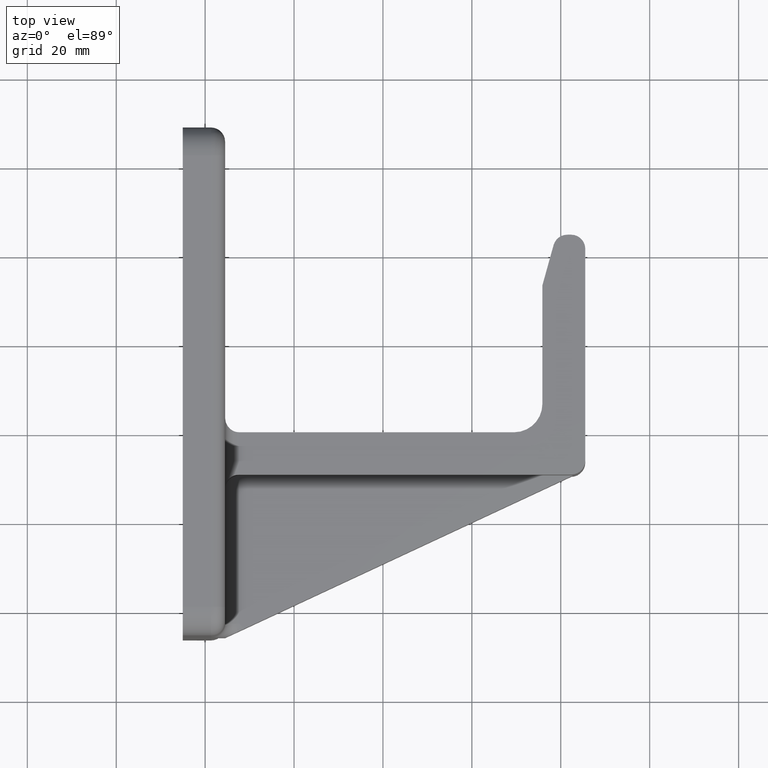
[diagram: clean part render]
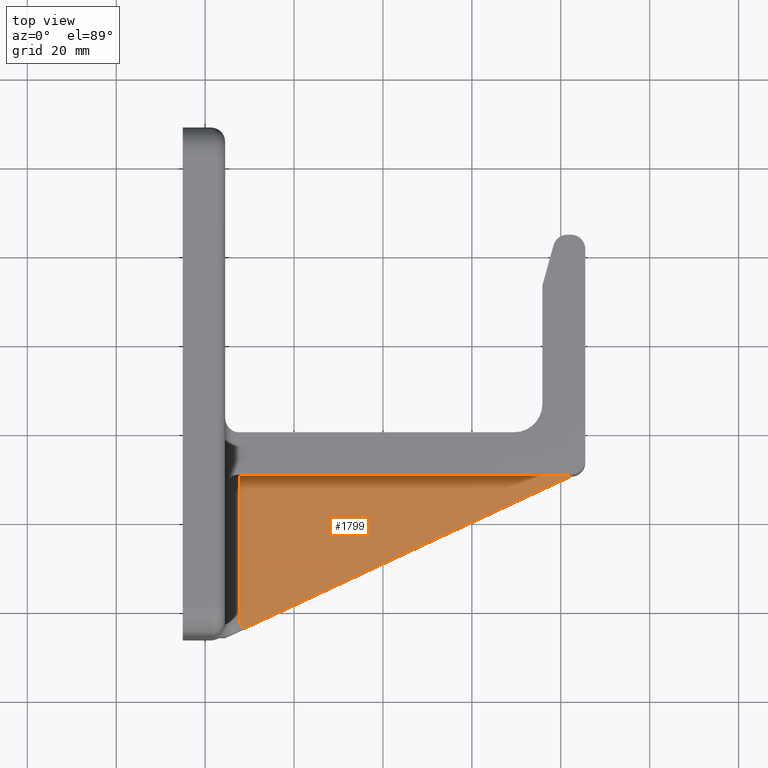
[diagram: same view with one face highlighted and labeled with its STEP entity id]
A machine part, top view. The second image highlights one B-rep face of the part: STEP entity #1799.
In plain terms, the highlighted planar face has unit normal (0, 0, -1).
Its self-contained STEP definition (entity closure, byte-faithful):
#19 = CARTESIAN_POINT ( 'NONE',  ( 4.046722392419051000, 1.979496558212011600, 0.1875000000000000300 ) ) ;
#20 = DIRECTION ( 'NONE',  ( 0.9063077870366522700, 0.4226182617406941100, -0.0000000000000000000 ) ) ;
#21 = CARTESIAN_POINT ( 'NONE',  ( 4.028993694186515200, 1.979496558212011600, 0.1875000000000000300 ) ) ;
#26 = VERTEX_POINT ( 'NONE', #679 ) ;
#61 = VERTEX_POINT ( 'NONE', #1161 ) ;
#118 = EDGE_CURVE ( 'NONE', #61, #26, #1683, .T. ) ;
#124 = VERTEX_POINT ( 'NONE', #333 ) ;
#126 = VERTEX_POINT ( 'NONE', #21 ) ;
#137 = VERTEX_POINT ( 'NONE', #642 ) ;
#333 = CARTESIAN_POINT ( 'NONE',  ( 1.088993694186518600, 1.979496558212011900, 0.1875000000000000600 ) ) ;
#604 = CARTESIAN_POINT ( 'NONE',  ( 4.046722392419051000, 1.979496558212011600, 0.1875000000000000300 ) ) ;
#605 = DIRECTION ( 'NONE',  ( -1.000000000000000000, 8.861785324250411300E-017, 0.0000000000000000000 ) ) ;
#609 = CARTESIAN_POINT ( 'NONE',  ( 1.088993694186517700, 0.6669965582120140900, 0.1875000000000000300 ) ) ;
#617 = CARTESIAN_POINT ( 'NONE',  ( 1.104254444012458000, 0.6517358324158453200, 0.1875000000000000300 ) ) ;
#618 = CARTESIAN_POINT ( 'NONE',  ( 1.119519338048742700, 0.6364706307339372800, 0.1875000000000000300 ) ) ;
#619 = CARTESIAN_POINT ( 'NONE',  ( 1.135537210651709400, 0.6219886136465692100, 0.1875000000000000300 ) ) ;
#621 = CARTESIAN_POINT ( 'NONE',  ( 1.088993694186518100, 1.979496558212011900, 0.1875000000000000300 ) ) ;
#622 = DIRECTION ( 'NONE',  ( -3.642463991552351500E-016, -1.000000000000000000, 0.0000000000000000000 ) ) ;
#642 = CARTESIAN_POINT ( 'NONE',  ( 1.088993694186517700, 0.6669965582120140900, 0.1875000000000000300 ) ) ;
#679 = CARTESIAN_POINT ( 'NONE',  ( 4.046722392419051000, 1.979496558212011600, 0.1875000000000000300 ) ) ;
#694 = LINE ( 'NONE', #621, #695 ) ;
#695 = VECTOR ( 'NONE', #622, 39.37007874015748100 ) ;
#720 = B_SPLINE_CURVE_WITH_KNOTS ( 'NONE', 3,
 ( #609, #617, #618, #619 ),
 .UNSPECIFIED., .F., .F.,
 ( 4, 4 ),
 ( -1.126942766962718500E-005, 0.001633274582007918100 ),
 .UNSPECIFIED. ) ;
#734 = EDGE_CURVE ( 'NONE', #126, #124, #1027, .T. ) ;
#771 = FACE_OUTER_BOUND ( 'NONE', #1387, .T. ) ;
#866 = EDGE_CURVE ( 'NONE', #26, #126, #1039, .T. ) ;
#871 = EDGE_CURVE ( 'NONE', #137, #61, #720, .T. ) ;
#872 = EDGE_CURVE ( 'NONE', #124, #137, #694, .T. ) ;
#1002 = CARTESIAN_POINT ( 'NONE',  ( 0.9639936941865185900, 1.979496558212011900, 0.1875000000000000300 ) ) ;
#1006 = PLANE ( 'NONE',  #1863 ) ;
#1009 = DIRECTION ( 'NONE',  ( 0.0000000000000000000, 0.0000000000000000000, -1.000000000000000000 ) ) ;
#1010 = DIRECTION ( 'NONE',  ( -1.000000000000000000, 0.0000000000000000000, 0.0000000000000000000 ) ) ;
#1027 = LINE ( 'NONE', #1436, #1028 ) ;
#1028 = VECTOR ( 'NONE', #1437, 39.37007874015748100 ) ;
#1037 = VECTOR ( 'NONE', #605, 39.37007874015748100 ) ;
#1039 = LINE ( 'NONE', #604, #1037 ) ;
#1161 = CARTESIAN_POINT ( 'NONE',  ( 1.135537210651709400, 0.6219886136465692100, 0.1875000000000000300 ) ) ;
#1387 = EDGE_LOOP ( 'NONE', ( #1586, #1585, #1584, #1583, #1582 ) ) ;
#1436 = CARTESIAN_POINT ( 'NONE',  ( 4.028993694186515200, 1.979496558212011900, 0.1875000000000000600 ) ) ;
#1437 = DIRECTION ( 'NONE',  ( -1.000000000000000000, 0.0000000000000000000, 0.0000000000000000000 ) ) ;
#1582 = ORIENTED_EDGE ( 'NONE', *, *, #734, .T. ) ;
#1583 = ORIENTED_EDGE ( 'NONE', *, *, #866, .T. ) ;
#1584 = ORIENTED_EDGE ( 'NONE', *, *, #118, .T. ) ;
#1585 = ORIENTED_EDGE ( 'NONE', *, *, #871, .T. ) ;
#1586 = ORIENTED_EDGE ( 'NONE', *, *, #872, .T. ) ;
#1678 = VECTOR ( 'NONE', #20, 39.37007874015748100 ) ;
#1683 = LINE ( 'NONE', #19, #1678 ) ;
#1799 = ADVANCED_FACE ( 'NONE', ( #771 ), #1006, .F. ) ;
#1863 = AXIS2_PLACEMENT_3D ( 'NONE', #1002, #1009, #1010 ) ;